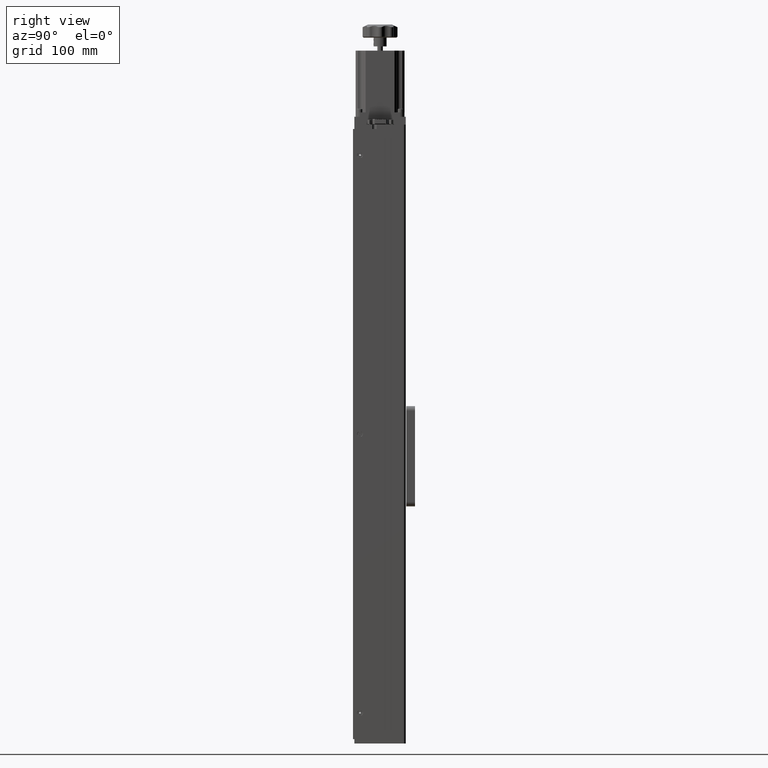
[diagram: clean part render]
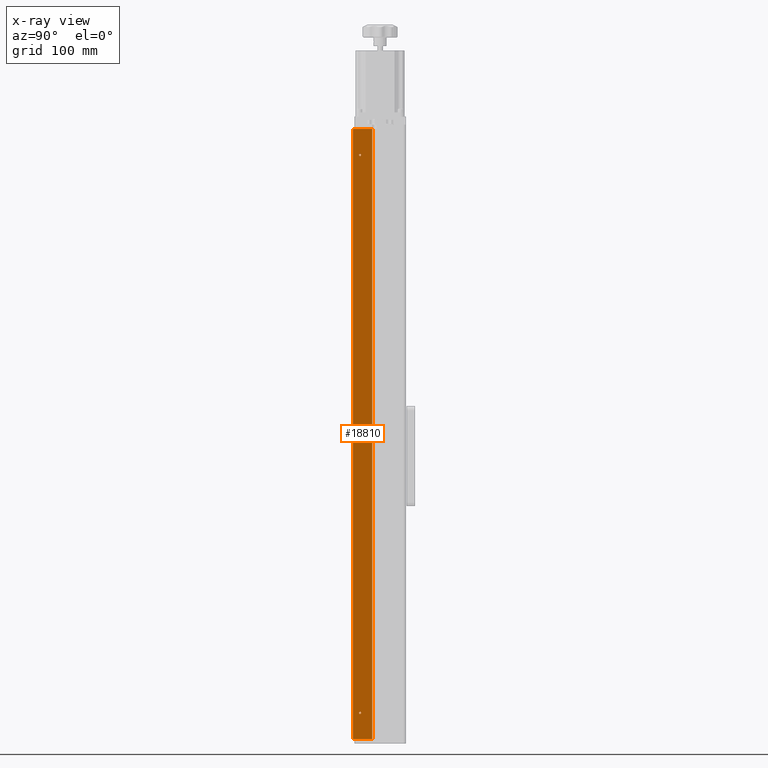
[diagram: x-ray — body ghosted, one internal face saturated and labeled with its STEP entity id]
A machine part, right view, then the same camera in x-ray: the body is ghosted and one INTERNAL B-rep face — a face not visible from any outside direction — is saturated and labeled: STEP entity #18810.
In plain terms, the highlighted planar face has unit normal (-1, 0, -0).
Its self-contained STEP definition (entity closure, byte-faithful):
#355 = DIRECTION ( 'NONE',  ( 0.0000000000000000000, 0.0000000000000000000, 1.000000000000000000 ) ) ;
#470 = CARTESIAN_POINT ( 'NONE',  ( -62.23569268325124400, -18.67012639631455100, -248.8342676332767100 ) ) ;
#1077 = EDGE_CURVE ( 'NONE', #39882, #41267, #35957, .T. ) ;
#1478 = CARTESIAN_POINT ( 'NONE',  ( -62.23569268325124400, -18.67012639631455100, -247.5842676332767100 ) ) ;
#1602 = EDGE_LOOP ( 'NONE', ( #24232, #30292 ) ) ;
#1742 = DIRECTION ( 'NONE',  ( 0.0000000000000000000, 0.0000000000000000000, -1.000000000000000000 ) ) ;
#2546 = EDGE_LOOP ( 'NONE', ( #15244, #25764, #27909, #33361 ) ) ;
#3263 = DIRECTION ( 'NONE',  ( 1.000000000000000000, -0.0000000000000000000, -0.0000000000000000000 ) ) ;
#3486 = LINE ( 'NONE', #31551, #27991 ) ;
#3558 = LINE ( 'NONE', #37862, #35580 ) ;
#3710 = CARTESIAN_POINT ( 'NONE',  ( -62.23569268325125800, -18.67012639631455100, -568.8342676332766800 ) ) ;
#4091 = CIRCLE ( 'NONE', #18699, 1.249999999999973400 ) ;
#4217 = CARTESIAN_POINT ( 'NONE',  ( -62.23569268325125800, -4.670126396314710600, 101.1657323667232800 ) ) ;
#4654 = EDGE_CURVE ( 'NONE', #9383, #23547, #3558, .T. ) ;
#5699 = AXIS2_PLACEMENT_3D ( 'NONE', #12915, #35268, #16131 ) ;
#5735 = AXIS2_PLACEMENT_3D ( 'NONE', #3710, #26082, #6920 ) ;
#6291 = CIRCLE ( 'NONE', #5735, 1.249999999999973400 ) ;
#6434 = FACE_BOUND ( 'NONE', #1602, .T. ) ;
#6920 = DIRECTION ( 'NONE',  ( 0.0000000000000000000, 0.0000000000000000000, -1.000000000000000000 ) ) ;
#8649 = EDGE_CURVE ( 'NONE', #24344, #30302, #37476, .T. ) ;
#8724 = AXIS2_PLACEMENT_3D ( 'NONE', #31300, #12184, #34532 ) ;
#8753 = CARTESIAN_POINT ( 'NONE',  ( -62.23569268325125800, -18.67012639631455100, 72.41573236672323300 ) ) ;
#9383 = VERTEX_POINT ( 'NONE', #29742 ) ;
#9512 = CARTESIAN_POINT ( 'NONE',  ( -62.23569268325125800, -18.67012639631455100, 71.16573236672324800 ) ) ;
#10817 = DIRECTION ( 'NONE',  ( 0.0000000000000000000, 0.0000000000000000000, -1.000000000000000000 ) ) ;
#11464 = VECTOR ( 'NONE', #10817, 1000.000000000000000 ) ;
#11512 = CIRCLE ( 'NONE', #5699, 1.249999999999973400 ) ;
#12184 = DIRECTION ( 'NONE',  ( 1.000000000000000000, -0.0000000000000000000, -0.0000000000000000000 ) ) ;
#12541 = DIRECTION ( 'NONE',  ( 1.000000000000000000, -0.0000000000000000000, -0.0000000000000000000 ) ) ;
#12733 = DIRECTION ( 'NONE',  ( 0.0000000000000000000, 0.0000000000000000000, -1.000000000000000000 ) ) ;
#12915 = CARTESIAN_POINT ( 'NONE',  ( -62.23569268325125800, -18.67012639631455100, -568.8342676332766800 ) ) ;
#13727 = EDGE_CURVE ( 'NONE', #41267, #9383, #40229, .T. ) ;
#14035 = EDGE_LOOP ( 'NONE', ( #20839, #28328 ) ) ;
#14548 = AXIS2_PLACEMENT_3D ( 'NONE', #9512, #31879, #12733 ) ;
#15244 = ORIENTED_EDGE ( 'NONE', *, *, #37037, .T. ) ;
#16057 = CARTESIAN_POINT ( 'NONE',  ( -62.23569268325125800, -4.670126396314710600, -598.8342676332768000 ) ) ;
#16131 = DIRECTION ( 'NONE',  ( 0.0000000000000000000, 0.0000000000000000000, -1.000000000000000000 ) ) ;
#18096 = CIRCLE ( 'NONE', #14548, 1.249999999999987100 ) ;
#18259 = PLANE ( 'NONE',  #27304 ) ;
#18406 = CARTESIAN_POINT ( 'NONE',  ( -62.23569268325125800, 2.249188469329459900, -598.8342676332768000 ) ) ;
#18699 = AXIS2_PLACEMENT_3D ( 'NONE', #31675, #12541, #34877 ) ;
#18810 = ADVANCED_FACE ( 'NONE', ( #6434, #23482, #39482, #22462 ), #18259, .F. ) ;
#19253 = AXIS2_PLACEMENT_3D ( 'NONE', #470, #3263, #1742 ) ;
#20542 = CARTESIAN_POINT ( 'NONE',  ( -62.23569268325125800, -18.67012639631455100, -570.0842676332766800 ) ) ;
#20839 = ORIENTED_EDGE ( 'NONE', *, *, #24139, .F. ) ;
#21587 = DIRECTION ( 'NONE',  ( -0.0000000000000000000, 0.0000000000000000000, 1.000000000000000000 ) ) ;
#22249 = CARTESIAN_POINT ( 'NONE',  ( -62.23569268325124400, -26.67012639631454700, 101.1657323667232800 ) ) ;
#22462 = FACE_BOUND ( 'NONE', #38278, .T. ) ;
#22909 = VERTEX_POINT ( 'NONE', #8753 ) ;
#23131 = EDGE_CURVE ( 'NONE', #30256, #36758, #6291, .T. ) ;
#23224 = VECTOR ( 'NONE', #40156, 1000.000000000000000 ) ;
#23482 = FACE_OUTER_BOUND ( 'NONE', #2546, .T. ) ;
#23547 = VERTEX_POINT ( 'NONE', #22249 ) ;
#24139 = EDGE_CURVE ( 'NONE', #30302, #24344, #4091, .T. ) ;
#24232 = ORIENTED_EDGE ( 'NONE', *, *, #39472, .F. ) ;
#24344 = VERTEX_POINT ( 'NONE', #1478 ) ;
#25207 = CARTESIAN_POINT ( 'NONE',  ( -62.23569268325124400, -18.67012639631455100, -250.0842676332766800 ) ) ;
#25764 = ORIENTED_EDGE ( 'NONE', *, *, #4654, .F. ) ;
#26082 = DIRECTION ( 'NONE',  ( 1.000000000000000000, -0.0000000000000000000, -0.0000000000000000000 ) ) ;
#27183 = VERTEX_POINT ( 'NONE', #30691 ) ;
#27205 = CARTESIAN_POINT ( 'NONE',  ( -62.23569268325125800, -4.670126396314710600, 101.1657323667232800 ) ) ;
#27304 = AXIS2_PLACEMENT_3D ( 'NONE', #18406, #40752, #21587 ) ;
#27909 = ORIENTED_EDGE ( 'NONE', *, *, #13727, .F. ) ;
#27991 = VECTOR ( 'NONE', #34751, 1000.000000000000000 ) ;
#28328 = ORIENTED_EDGE ( 'NONE', *, *, #8649, .F. ) ;
#29742 = CARTESIAN_POINT ( 'NONE',  ( -62.23569268325125800, -26.67012639631455100, -598.8342676332768000 ) ) ;
#29997 = EDGE_CURVE ( 'NONE', #22909, #27183, #18096, .T. ) ;
#30256 = VERTEX_POINT ( 'NONE', #31520 ) ;
#30292 = ORIENTED_EDGE ( 'NONE', *, *, #29997, .F. ) ;
#30302 = VERTEX_POINT ( 'NONE', #25207 ) ;
#30324 = EDGE_CURVE ( 'NONE', #36758, #30256, #11512, .T. ) ;
#30691 = CARTESIAN_POINT ( 'NONE',  ( -62.23569268325125800, -18.67012639631455100, 69.91573236672326200 ) ) ;
#31300 = CARTESIAN_POINT ( 'NONE',  ( -62.23569268325125800, -18.67012639631455100, 71.16573236672324800 ) ) ;
#31520 = CARTESIAN_POINT ( 'NONE',  ( -62.23569268325125800, -18.67012639631455100, -567.5842676332768000 ) ) ;
#31551 = CARTESIAN_POINT ( 'NONE',  ( -62.23569268325125800, 2.249188469329459900, 101.1657323667232800 ) ) ;
#31586 = ORIENTED_EDGE ( 'NONE', *, *, #23131, .F. ) ;
#31675 = CARTESIAN_POINT ( 'NONE',  ( -62.23569268325124400, -18.67012639631455100, -248.8342676332767100 ) ) ;
#31879 = DIRECTION ( 'NONE',  ( 1.000000000000000000, -0.0000000000000000000, -0.0000000000000000000 ) ) ;
#33361 = ORIENTED_EDGE ( 'NONE', *, *, #1077, .F. ) ;
#33837 = CIRCLE ( 'NONE', #8724, 1.249999999999987100 ) ;
#34369 = ORIENTED_EDGE ( 'NONE', *, *, #30324, .F. ) ;
#34532 = DIRECTION ( 'NONE',  ( 0.0000000000000000000, 0.0000000000000000000, -1.000000000000000000 ) ) ;
#34751 = DIRECTION ( 'NONE',  ( 0.0000000000000000000, -1.000000000000000000, 0.0000000000000000000 ) ) ;
#34877 = DIRECTION ( 'NONE',  ( 0.0000000000000000000, 0.0000000000000000000, -1.000000000000000000 ) ) ;
#35268 = DIRECTION ( 'NONE',  ( 1.000000000000000000, -0.0000000000000000000, -0.0000000000000000000 ) ) ;
#35580 = VECTOR ( 'NONE', #355, 1000.000000000000000 ) ;
#35957 = LINE ( 'NONE', #4217, #11464 ) ;
#36667 = CARTESIAN_POINT ( 'NONE',  ( -62.23569268325125800, 2.249188469329459900, -598.8342676332768000 ) ) ;
#36758 = VERTEX_POINT ( 'NONE', #20542 ) ;
#37037 = EDGE_CURVE ( 'NONE', #39882, #23547, #3486, .T. ) ;
#37476 = CIRCLE ( 'NONE', #19253, 1.249999999999973400 ) ;
#37862 = CARTESIAN_POINT ( 'NONE',  ( -62.23569268325127300, -26.67012639631454700, -598.8342676332768000 ) ) ;
#38278 = EDGE_LOOP ( 'NONE', ( #34369, #31586 ) ) ;
#39472 = EDGE_CURVE ( 'NONE', #27183, #22909, #33837, .T. ) ;
#39482 = FACE_BOUND ( 'NONE', #14035, .T. ) ;
#39882 = VERTEX_POINT ( 'NONE', #27205 ) ;
#40156 = DIRECTION ( 'NONE',  ( 0.0000000000000000000, -1.000000000000000000, 0.0000000000000000000 ) ) ;
#40229 = LINE ( 'NONE', #36667, #23224 ) ;
#40752 = DIRECTION ( 'NONE',  ( -1.000000000000000000, 0.0000000000000000000, -0.0000000000000000000 ) ) ;
#41267 = VERTEX_POINT ( 'NONE', #16057 ) ;